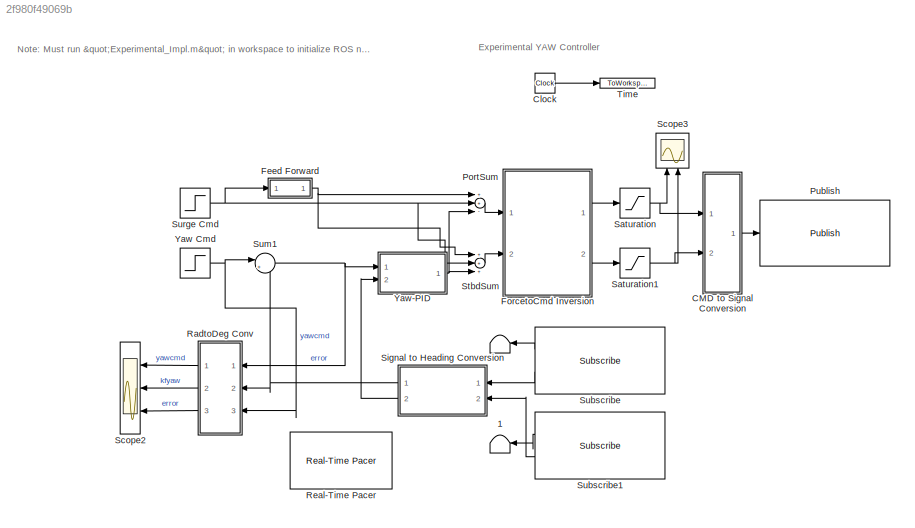
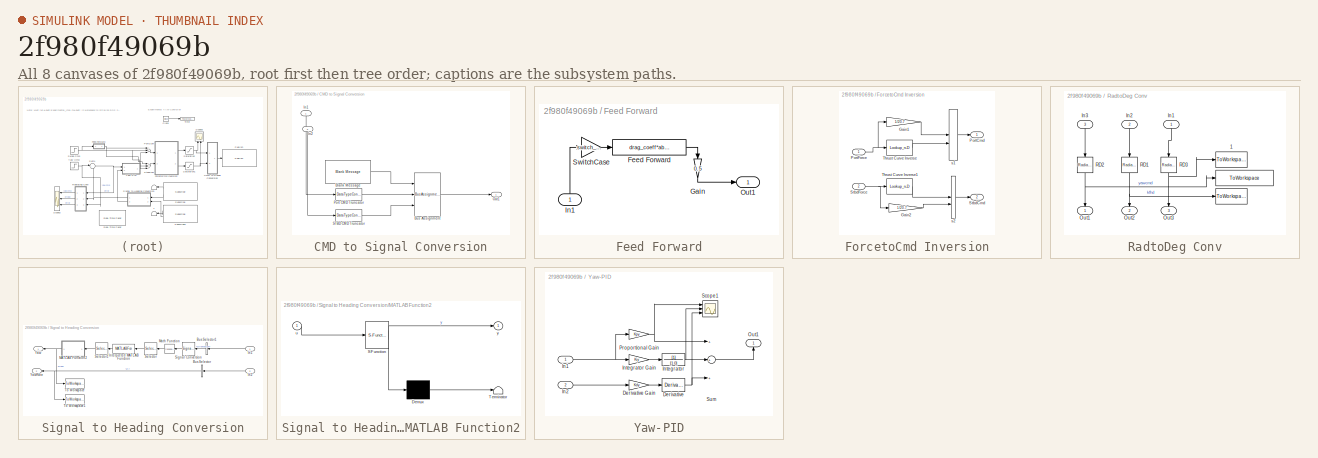
[diagram: thumbnail index - all 8 canvases of the model, root first then tree order]
MODEL slx_2f980f49069b
KIND model
CONFIG AbsTol = auto
CONFIG FixedStep = auto
CONFIG MaxStep = auto
CONFIG MinStep = auto
CONFIG RelTol = 1e-3
CONFIG SampleTimeConstraint = Unconstrained
CONFIG Solver = VariableStepAuto
CONFIG SolverMode = Auto
CONFIG SolverName = VariableStepAuto
CONFIG StartTime = 0.0
CONFIG StopTime = sim_time
BLOCK [Terminator]  
BLOCK [Terminator]  1
BLOCK [SubSystem] CMD to Signal Conversion
  Ports = [2, 1]
  RequestExecContextInheritance = off
  Variant = off
BLOCK [Reference] CMD to Signal Conversion/Blank Message  REF=robotlib/Blank Message
  Ports = [0, 1]
  SourceBlock = robotlib/Blank Message
  SourceLibraryInfo = This block requires Robotics System Toolbox
  SourceType = ROS Blank Message
BLOCK [BusAssignment] CMD to Signal Conversion/Bus Assignment
  AssignedSignals = Left,Right
  Ports = [3, 1]
BLOCK [Inport] CMD to Signal Conversion/In1
  IconDisplay = Port number
BLOCK [Inport] CMD to Signal Conversion/In2
  IconDisplay = Port number
  Port = 2
BLOCK [Outport] CMD to Signal Conversion/Out1
  IconDisplay = Port number
BLOCK [DataTypeConversion] CMD to Signal Conversion/Port CMD Truncator
  OutDataTypeStr = single
  RndMeth = Floor
  SaturateOnIntegerOverflow = off
BLOCK [DataTypeConversion] CMD to Signal Conversion/STBD CMD Truncator
  OutDataTypeStr = single
  RndMeth = Floor
  SaturateOnIntegerOverflow = off
BLOCK [Clock] Clock
BLOCK [SubSystem] Feed Forward
  Ports = [1, 1]
  RequestExecContextInheritance = off
  Variant = off
BLOCK [Fcn] Feed Forward/Feed Forward
  Expr = drag_coeff*abs(u)*u
BLOCK [Gain] Feed Forward/Gain
  Gain = 0.5
  OutDataTypeStr = Inherit: Inherit via internal rule
  ParamDataTypeStr = Inherit: Inherit via internal rule
  SaturateOnIntegerOverflow = off
BLOCK [Inport] Feed Forward/In1
  IconDisplay = Port number
BLOCK [Outport] Feed Forward/Out1
  IconDisplay = Port number
BLOCK [Gain] Feed Forward/SwitchCase
  Gain = switch_case
  OutDataTypeStr = Inherit: Inherit via internal rule
  ParamDataTypeStr = Inherit: Inherit via internal rule
  SaturateOnIntegerOverflow = off
BLOCK [SubSystem] ForcetoCmd Inversion
  Ports = [2, 2]
  RequestExecContextInheritance = off
  Variant = off
BLOCK [Gain] ForcetoCmd Inversion/Gain1
  Gain = 1/20.7
  OutDataTypeStr = Inherit: Inherit via internal rule
  ParamDataTypeStr = Inherit: Inherit via internal rule
  SaturateOnIntegerOverflow = off
BLOCK [Gain] ForcetoCmd Inversion/Gain2
  Gain = 1/20.7
  OutDataTypeStr = Inherit: Inherit via internal rule
  ParamDataTypeStr = Inherit: Inherit via internal rule
  SaturateOnIntegerOverflow = off
BLOCK [Outport] ForcetoCmd Inversion/PortCmd
  IconDisplay = Port number
BLOCK [Inport] ForcetoCmd Inversion/PortForce
  IconDisplay = Port number
BLOCK [Outport] ForcetoCmd Inversion/StbdCmd
  IconDisplay = Port number
  Port = 2
BLOCK [Inport] ForcetoCmd Inversion/StbdForce
  IconDisplay = Port number
  Port = 2
BLOCK [Lookup_n-D] ForcetoCmd Inversion/Thrust Curve Inverse
  BreakpointsForDimension1 = table_data
  ExtrapMethod = Clip
  InternalRulePriority = Speed
  NumberOfTableDimensions = 1
  Ports = [1, 1]
  RndMeth = Simplest
  Table = breakpoints1
  UseLastTableValue = on
BLOCK [Lookup_n-D] ForcetoCmd Inversion/Thrust Curve Inverse1
  BreakpointsForDimension1 = table_data
  ExtrapMethod = Clip
  InternalRulePriority = Speed
  NumberOfTableDimensions = 1
  Ports = [1, 1]
  RndMeth = Simplest
  Table = breakpoints1
  UseLastTableValue = on
BLOCK [ManualSwitch] ForcetoCmd Inversion/s1 
BLOCK [ManualSwitch] ForcetoCmd Inversion/s2
  CurrentSetting = 0
BLOCK [Sum] PortSum
  InputSameDT = off
  Inputs = ++-
  OutDataTypeStr = Inherit: Inherit via internal rule
  Ports = [3, 1]
  SaturateOnIntegerOverflow = off
BLOCK [Reference] Publish  REF=robotlib/Publish
  Ports = [1]
  SourceBlock = robotlib/Publish
  SourceLibraryInfo = This block requires Robotics System Toolbox
  SourceType = ROS Publish
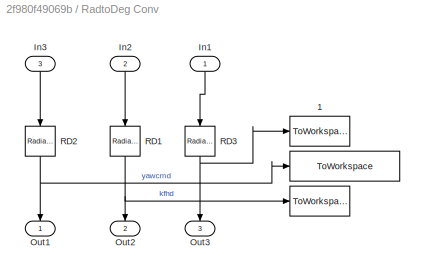
BLOCK [SubSystem] RadtoDeg Conv
  Ports = [3, 3]
  RequestExecContextInheritance = off
  Variant = off
BLOCK [ToWorkspace] RadtoDeg Conv/ 
  FixptAsFi = on
  MaxDataPoints = inf
  Ports = [1]
  SampleTime = -1
  Save2DSignal = 3-D array (concatenate along third dimension)
  VariableName = yawcmd
BLOCK [ToWorkspace] RadtoDeg Conv/ 1
  FixptAsFi = on
  MaxDataPoints = inf
  Ports = [1]
  SampleTime = -1
  Save2DSignal = 3-D array (concatenate along third dimension)
  VariableName = error
BLOCK [Inport] RadtoDeg Conv/In1
  IconDisplay = Port number
BLOCK [Inport] RadtoDeg Conv/In2
  IconDisplay = Port number
  Port = 2
BLOCK [Inport] RadtoDeg Conv/In3
  IconDisplay = Port number
  Port = 3
BLOCK [Outport] RadtoDeg Conv/Out1
  IconDisplay = Port number
BLOCK [Outport] RadtoDeg Conv/Out2
  IconDisplay = Port number
  Port = 2
BLOCK [Outport] RadtoDeg Conv/Out3
  IconDisplay = Port number
  Port = 3
BLOCK [Reference] RadtoDeg Conv/RD1  REF=simulink_extras/Transformations/Radians
to Degrees
  Ports = [1, 1]
  SourceBlock = simulink_extras/Transformations/Radians\nto Degrees
  SourceType = RadiansToDegrees
BLOCK [Reference] RadtoDeg Conv/RD2  REF=simulink_extras/Transformations/Radians
to Degrees
  Ports = [1, 1]
  SourceBlock = simulink_extras/Transformations/Radians\nto Degrees
  SourceType = RadiansToDegrees
BLOCK [Reference] RadtoDeg Conv/RD3  REF=simulink_extras/Transformations/Radians
to Degrees
  Ports = [1, 1]
  SourceBlock = simulink_extras/Transformations/Radians\nto Degrees
  SourceType = RadiansToDegrees
BLOCK [Reference] Real-Time Pacer  REF=realtime_pacer_lib/Real-Time Pacer
  Ports = []
  SourceBlock = realtime_pacer_lib/Real-Time Pacer
  SourceType = RealTime_Pacer
BLOCK [Saturate] Saturation
  InputPortMap = u0
  LowerLimit = -1
  Ports = [1, 1]
  UpperLimit = 1
BLOCK [Saturate] Saturation1
  InputPortMap = u0
  LowerLimit = -1
  Ports = [1, 1]
  UpperLimit = 1
BLOCK [Scope] Scope2
  NumInputPorts = 3
  Ports = [3]
  ScopeSpecificationString = Simulink.scopes.TimeScopeBlockCfg('CurrentConfiguration', extmgr.ConfigurationSet(extmgr.Configuration('Core','General UI',true),extmgr.Configuration('Core','Source UI',true),extmgr.Configuration('Sources','WiredSimulink',true,'DataLoggingVariableName','ScopeData1'),extmgr.Configuration('Visuals','Time Domain',true,'SerializedDisplays',{struct('MinYLimReal','-35.70242','MaxYLimReal','35.70242','YL...<+1415ch>
BLOCK [Scope] Scope3
  NumInputPorts = 2
  Ports = [2]
  ScopeSpecificationString = Simulink.scopes.TimeScopeBlockCfg('CurrentConfiguration', extmgr.ConfigurationSet(extmgr.Configuration('Core','General UI',true),extmgr.Configuration('Core','Source UI',true),extmgr.Configuration('Sources','WiredSimulink',true,'DataLoggingVariableName','ScopeData2'),extmgr.Configuration('Visuals','Time Domain',true,'SerializedDisplays',{struct('MinYLimReal','-0.09691','MaxYLimReal','0.09691','YLab...<+1411ch>
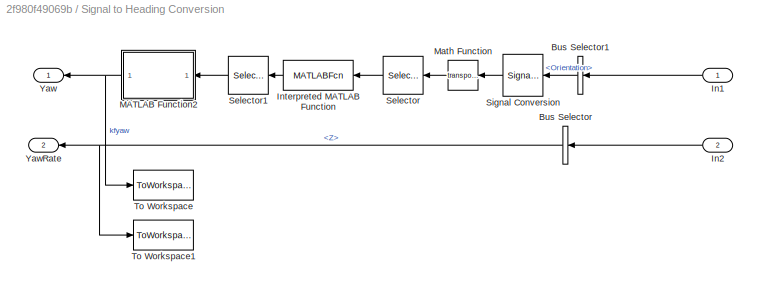
BLOCK [SubSystem] Signal to Heading Conversion
  Ports = [2, 2]
  RequestExecContextInheritance = off
  Variant = off
BLOCK [BusSelector] Signal to Heading Conversion/Bus Selector
  OutputSignals = Twist.Twist.Angular.Z
  Ports = [1, 1]
BLOCK [BusSelector] Signal to Heading Conversion/Bus Selector1
  OutputSignals = Pose.Pose.Orientation
  Ports = [1, 1]
BLOCK [Inport] Signal to Heading Conversion/In1
  IconDisplay = Port number
BLOCK [Inport] Signal to Heading Conversion/In2
  IconDisplay = Port number
  Port = 2
BLOCK [MATLABFcn] Signal to Heading Conversion/Interpreted MATLAB Function
  MATLABFcn = quat2eul
  OutputDimensions = 3
  Ports = [1, 1]
BLOCK [SubSystem] Signal to Heading Conversion/MATLAB Function2
  ErrorFcn = Stateflow.Translate.translate
  PermitHierarchicalResolution = ExplicitOnly
  Ports = [1, 1]
  RequestExecContextInheritance = off
  SFBlockType = MATLAB Function
  TreatAsAtomicUnit = on
  Variant = off
BLOCK [Demux] Signal to Heading Conversion/MATLAB Function2/ Demux 
  Outputs = 1
  Ports = [1, 1]
BLOCK [S-Function] Signal to Heading Conversion/MATLAB Function2/ SFunction 
  EnableBusSupport = on
  FunctionName = sf_sfun
  PortCounts = [1 2]
  Ports = [1, 2]
  SFunctionDeploymentMode = off
  Tag = Stateflow S-Function EXP_Controller_YAW 2
BLOCK [Terminator] Signal to Heading Conversion/MATLAB Function2/ Terminator 
BLOCK [Inport] Signal to Heading Conversion/MATLAB Function2/u
  IconDisplay = Port number
BLOCK [Outport] Signal to Heading Conversion/MATLAB Function2/y
  IconDisplay = Port number
BLOCK [Math] Signal to Heading Conversion/Math Function
  Operator = transpose
  Ports = [1, 1]
BLOCK [Selector] Signal to Heading Conversion/Selector
  IndexOptions = Index vector (dialog)
  Indices = [4 1 2 3]
  InputPortWidth = 4
  OutputSizes = 1
  Ports = [1, 1]
BLOCK [Selector] Signal to Heading Conversion/Selector1
  IndexOptions = Index vector (dialog)
  Indices = 1
  InputPortWidth = 3
  OutputSizes = 1
  Ports = [1, 1]
BLOCK [SignalConversion] Signal to Heading Conversion/Signal Conversion
  ConversionOutput = Virtual bus
BLOCK [ToWorkspace] Signal to Heading Conversion/To Workspace
  FixptAsFi = on
  MaxDataPoints = inf
  Ports = [1]
  SampleTime = -1
  Save2DSignal = 3-D array (concatenate along third dimension)
  VariableName = kfyaw
BLOCK [ToWorkspace] Signal to Heading Conversion/To Workspace1
  FixptAsFi = on
  MaxDataPoints = inf
  Ports = [1]
  SampleTime = -1
  Save2DSignal = 3-D array (concatenate along third dimension)
  VariableName = yawrate
BLOCK [Outport] Signal to Heading Conversion/Yaw
  IconDisplay = Port number
BLOCK [Outport] Signal to Heading Conversion/YawRate
  IconDisplay = Port number
  Port = 2
BLOCK [Sum] StbdSum
  InputSameDT = off
  Inputs = +++
  OutDataTypeStr = Inherit: Inherit via internal rule
  Ports = [3, 1]
  SaturateOnIntegerOverflow = off
BLOCK [Reference] Subscribe  REF=robotlib/Subscribe
  Ports = [0, 2]
  SourceBlock = robotlib/Subscribe
  SourceLibraryInfo = This block requires Robotics System Toolbox
  SourceType = ROS Subscribe
BLOCK [Reference] Subscribe1  REF=robotlib/Subscribe
  Ports = [0, 2]
  SourceBlock = robotlib/Subscribe
  SourceLibraryInfo = This block requires Robotics System Toolbox
  SourceType = ROS Subscribe
BLOCK [Sum] Sum1
  IconShape = round
  InputSameDT = off
  Inputs = |+-
  OutDataTypeStr = Inherit: Inherit via internal rule
  Ports = [2, 1]
  SaturateOnIntegerOverflow = off
BLOCK [Step] Surge Cmd
  After = vf
  Before = vo
  SampleTime = 0
BLOCK [ToWorkspace] Time
  FixptAsFi = on
  MaxDataPoints = inf
  Ports = [1]
  SampleTime = -1
  Save2DSignal = 3-D array (concatenate along third dimension)
  VariableName = time
BLOCK [Step] Yaw Cmd
  After = yf
  SampleTime = 0
  Time = 40
BLOCK [SubSystem] Yaw-PID
  Ports = [2, 1]
  RequestExecContextInheritance = off
  Variant = off
BLOCK [Derivative] Yaw-PID/Derivative
  CoefficientInTFapproximation = 0
BLOCK [Gain] Yaw-PID/Derivative Gain
  Gain = Kdy
  OutDataTypeStr = Inherit: Inherit via internal rule
  ParamDataTypeStr = Inherit: Inherit via internal rule
  SaturateOnIntegerOverflow = off
BLOCK [Inport] Yaw-PID/In1
  IconDisplay = Port number
BLOCK [Inport] Yaw-PID/In2
  IconDisplay = Port number
  Port = 2
BLOCK [TransferFcn] Yaw-PID/Integrator
  Denominator = [1 0]
BLOCK [Gain] Yaw-PID/Integrator Gain
  Gain = Kiy
  OutDataTypeStr = Inherit: Inherit via internal rule
  ParamDataTypeStr = Inherit: Inherit via internal rule
  SaturateOnIntegerOverflow = off
BLOCK [Outport] Yaw-PID/Out1
  IconDisplay = Port number
BLOCK [Gain] Yaw-PID/Proportional Gain
  Gain = Kpy
  OutDataTypeStr = Inherit: Inherit via internal rule
  ParamDataTypeStr = Inherit: Inherit via internal rule
  SaturateOnIntegerOverflow = off
BLOCK [Scope] Yaw-PID/Scope1
  NumInputPorts = 3
  Ports = [3]
  ScopeSpecificationString = Simulink.scopes.TimeScopeBlockCfg('CurrentConfiguration', extmgr.ConfigurationSet(extmgr.Configuration('Core','General UI',true),extmgr.Configuration('Core','Source UI',true),extmgr.Configuration('Sources','WiredSimulink',true,'DataLoggingVariableName','ScopeData1'),extmgr.Configuration('Visuals','Time Domain',true,'SerializedDisplays',{struct('MinYLimReal','-0.28975','MaxYLimReal','2.25442','YLab...<+1431ch>
BLOCK [Sum] Yaw-PID/Sum
  InputSameDT = off
  Inputs = +++
  OutDataTypeStr = Inherit: Inherit via internal rule
  Ports = [3, 1]
  SaturateOnIntegerOverflow = off
ANNOTATION (root): Note: Must run "Experimental_Impl.m" in workspace to initialize ROS nodes, populate variables and lookup table!
ANNOTATION (root): Experimental YAW Controller
LINE CMD to Signal Conversion/Blank Message:1 -> CMD to Signal Conversion/Bus Assignment:1
LINE CMD to Signal Conversion/Bus Assignment:1 -> CMD to Signal Conversion/Out1:1
LINE CMD to Signal Conversion/In1:1 -> CMD to Signal Conversion/Port CMD Truncator:1
LINE CMD to Signal Conversion/In2:1 -> CMD to Signal Conversion/STBD CMD Truncator:1
LINE CMD to Signal Conversion/Port CMD Truncator:1 -> CMD to Signal Conversion/Bus Assignment:2
LINE CMD to Signal Conversion/STBD CMD Truncator:1 -> CMD to Signal Conversion/Bus Assignment:3
LINE CMD to Signal Conversion:1 -> Publish:1
LINE Clock:1 -> Time:1
LINE Feed Forward/Feed Forward:1 -> Feed Forward/Gain:1
LINE Feed Forward/Gain:1 -> Feed Forward/Out1:1
LINE Feed Forward/In1:1 -> Feed Forward/SwitchCase:1
LINE Feed Forward/SwitchCase:1 -> Feed Forward/Feed Forward:1
NET Feed Forward:1 -> PortSum:1, StbdSum:1
LINE ForcetoCmd Inversion/Gain1:1 -> ForcetoCmd Inversion/s1 :1
LINE ForcetoCmd Inversion/Gain2:1 -> ForcetoCmd Inversion/s2:2
NET ForcetoCmd Inversion/PortForce:1 -> ForcetoCmd Inversion/Gain1:1, ForcetoCmd Inversion/Thrust Curve Inverse:1
NET ForcetoCmd Inversion/StbdForce:1 -> ForcetoCmd Inversion/Gain2:1, ForcetoCmd Inversion/Thrust Curve Inverse1:1
LINE ForcetoCmd Inversion/Thrust Curve Inverse1:1 -> ForcetoCmd Inversion/s2:1
LINE ForcetoCmd Inversion/Thrust Curve Inverse:1 -> ForcetoCmd Inversion/s1 :2
LINE ForcetoCmd Inversion/s1 :1 -> ForcetoCmd Inversion/PortCmd:1
LINE ForcetoCmd Inversion/s2:1 -> ForcetoCmd Inversion/StbdCmd:1
LINE ForcetoCmd Inversion:1 -> Saturation:1
LINE ForcetoCmd Inversion:2 -> Saturation1:1
LINE PortSum:1 -> ForcetoCmd Inversion:1
LINE RadtoDeg Conv/In1:1 -> RadtoDeg Conv/RD3:1
LINE RadtoDeg Conv/In2:1 -> RadtoDeg Conv/RD1:1
LINE RadtoDeg Conv/In3:1 -> RadtoDeg Conv/RD2:1
NET RadtoDeg Conv/RD1:1 -> RadtoDeg Conv/ :1, RadtoDeg Conv/Out2:1
NET RadtoDeg Conv/RD2:1 -> RadtoDeg Conv/ :1, RadtoDeg Conv/Out1:1
NET RadtoDeg Conv/RD3:1 -> RadtoDeg Conv/ 1:1, RadtoDeg Conv/Out3:1
LINE RadtoDeg Conv:1 -> Scope2:1
LINE RadtoDeg Conv:2 -> Scope2:2
LINE RadtoDeg Conv:3 -> Scope2:3
NET Saturation1:1 -> CMD to Signal Conversion:2, Scope3:2
NET Saturation:1 -> CMD to Signal Conversion:1, Scope3:1
LINE Signal to Heading Conversion/Bus Selector1:1 -> Signal to Heading Conversion/Signal Conversion:1
NET Signal to Heading Conversion/Bus Selector:1 -> Signal to Heading Conversion/To Workspace1:1, Signal to Heading Conversion/YawRate:1
LINE Signal to Heading Conversion/In1:1 -> Signal to Heading Conversion/Bus Selector1:1
LINE Signal to Heading Conversion/In2:1 -> Signal to Heading Conversion/Bus Selector:1
LINE Signal to Heading Conversion/Interpreted MATLAB Function:1 -> Signal to Heading Conversion/Selector1:1
NET Signal to Heading Conversion/MATLAB Function2:1 -> Signal to Heading Conversion/To Workspace:1, Signal to Heading Conversion/Yaw:1
LINE Signal to Heading Conversion/Math Function:1 -> Signal to Heading Conversion/Selector:1
LINE Signal to Heading Conversion/Selector1:1 -> Signal to Heading Conversion/MATLAB Function2:1
LINE Signal to Heading Conversion/Selector:1 -> Signal to Heading Conversion/Interpreted MATLAB Function:1
LINE Signal to Heading Conversion/Signal Conversion:1 -> Signal to Heading Conversion/Math Function:1
NET Signal to Heading Conversion:1 -> RadtoDeg Conv:2, Sum1:2
LINE Signal to Heading Conversion:2 -> Yaw-PID:2
LINE StbdSum:1 -> ForcetoCmd Inversion:2
LINE Subscribe1:1 ->  1:1
LINE Subscribe1:2 -> Signal to Heading Conversion:2
LINE Subscribe:1 ->  :1
LINE Subscribe:2 -> Signal to Heading Conversion:1
NET Sum1:1 -> RadtoDeg Conv:1, Yaw-PID:1
NET Surge Cmd:1 -> Feed Forward:1, PortSum:2, StbdSum:2
NET Yaw Cmd:1 -> RadtoDeg Conv:3, Sum1:1
LINE Yaw-PID/Derivative Gain:1 -> Yaw-PID/Derivative:1
NET Yaw-PID/Derivative:1 -> Yaw-PID/Scope1:3, Yaw-PID/Sum:3
NET Yaw-PID/In1:1 -> Yaw-PID/Integrator Gain:1, Yaw-PID/Proportional Gain:1
LINE Yaw-PID/In2:1 -> Yaw-PID/Derivative Gain:1
LINE Yaw-PID/Integrator Gain:1 -> Yaw-PID/Integrator:1
NET Yaw-PID/Integrator:1 -> Yaw-PID/Scope1:2, Yaw-PID/Sum:2
NET Yaw-PID/Proportional Gain:1 -> Yaw-PID/Scope1:1, Yaw-PID/Sum:1
LINE Yaw-PID/Sum:1 -> Yaw-PID/Out1:1
NET Yaw-PID:1 -> PortSum:3, StbdSum:3
note: NET lines group one-source signal fan-out (src -> all destinations, sorted); 1:1 wires keep LINE
CHART Signal to Heading Conversion/MATLAB Function2 states=1 transitions=1
  STATE_LABEL 'eML_blk_kernel()'
  STATE_LABEL 'SCRIPT:\nfunction y = wrapToPi(u)\n%#codegen\nwhile u>pi\n    u = u -2*pi;\nend;\nwhile u < -pi\n    u = u + 2*pi;\nend;\ny = u;'
